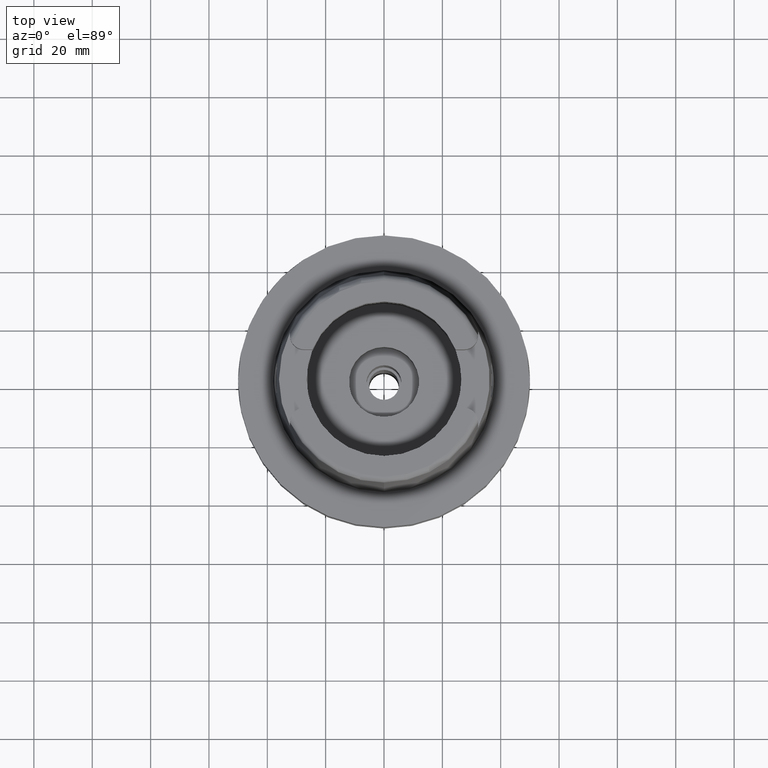
[diagram: clean part render]
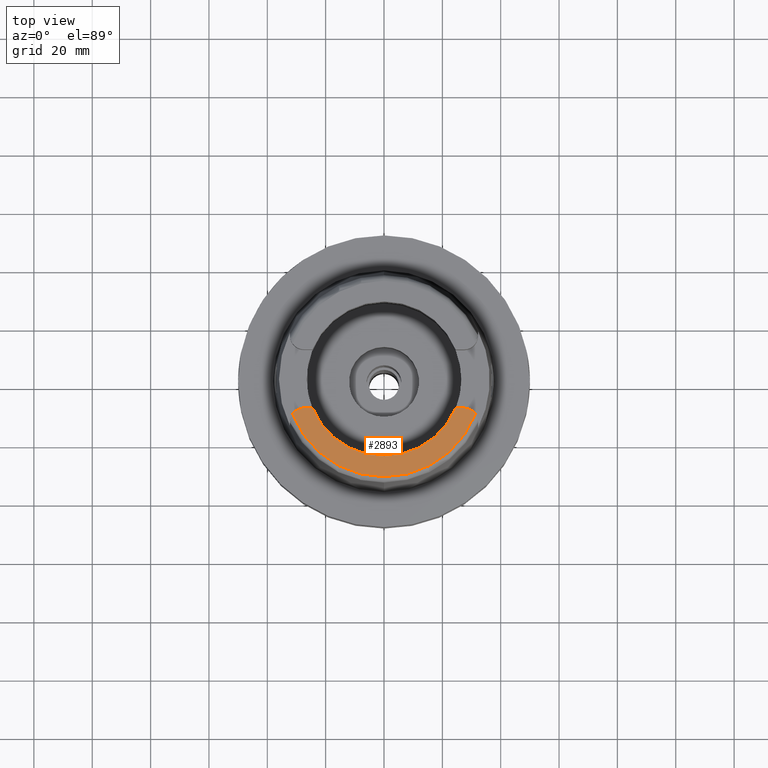
[diagram: same view with one face highlighted and labeled with its STEP entity id]
A machine part, top view. The second image highlights one B-rep face of the part: STEP entity #2893.
In plain terms, the highlighted planar face has unit normal (0, 0, 1).
Its self-contained STEP definition (entity closure, byte-faithful):
#160=DIRECTION('',(-1.E0,1.442003377037E-13,0.E0));
#161=VECTOR('',#160,2.833294842218E0);
#162=CARTESIAN_POINT('',(-2.453670515778E1,-1.001E1,5.E1));
#163=LINE('',#162,#161);
#167=CARTESIAN_POINT('',(-2.737E1,-1.489E1,5.E1));
#168=DIRECTION('',(0.E0,0.E0,-1.E0));
#169=DIRECTION('',(-8.163632566569E-1,5.775387720150E-1,0.E0));
#170=AXIS2_PLACEMENT_3D('',#167,#168,#169);
#175=CARTESIAN_POINT('',(0.E0,0.E0,5.E1));
#176=DIRECTION('',(0.E0,0.E0,1.E0));
#177=DIRECTION('',(-9.259134021805E-1,-3.777358490566E-1,0.E0));
#178=AXIS2_PLACEMENT_3D('',#175,#176,#177);
#183=CARTESIAN_POINT('',(0.E0,0.E0,5.E1));
#184=DIRECTION('',(0.E0,0.E0,1.E0));
#185=DIRECTION('',(0.E0,-1.E0,0.E0));
#186=AXIS2_PLACEMENT_3D('',#183,#184,#185);
#191=CARTESIAN_POINT('',(2.737E1,-1.489E1,5.E1));
#192=DIRECTION('',(0.E0,0.E0,-1.E0));
#193=DIRECTION('',(0.E0,1.E0,0.E0));
#194=AXIS2_PLACEMENT_3D('',#191,#192,#193);
#199=CARTESIAN_POINT('',(0.E0,0.E0,5.E1));
#200=DIRECTION('',(0.E0,0.E0,-1.E0));
#201=DIRECTION('',(9.332215253018E-1,-3.593015233942E-1,0.E0));
#202=AXIS2_PLACEMENT_3D('',#199,#200,#201);
#500=DIRECTION('',(-1.E0,-1.454542536838E-13,0.E0));
#501=VECTOR('',#500,2.833294842218E0);
#502=CARTESIAN_POINT('',(2.737E1,-1.001E1,5.E1));
#503=LINE('',#502,#501);
#2418=CARTESIAN_POINT('',(-3.135385269249E1,-1.207161079257E1,5.E1));
#2419=CARTESIAN_POINT('',(-2.737E1,-1.001E1,5.E1));
#2420=VERTEX_POINT('',#2418);
#2421=VERTEX_POINT('',#2419);
#2422=CARTESIAN_POINT('',(-2.453670515778E1,-1.001E1,5.E1));
#2423=VERTEX_POINT('',#2422);
#2424=CARTESIAN_POINT('',(0.E0,-2.65E1,5.E1));
#2425=VERTEX_POINT('',#2424);
#2426=CARTESIAN_POINT('',(2.453670515778E1,-1.001E1,5.E1));
#2427=VERTEX_POINT('',#2426);
#2428=CARTESIAN_POINT('',(2.737E1,-1.001E1,5.E1));
#2429=VERTEX_POINT('',#2428);
#2430=CARTESIAN_POINT('',(3.135385269249E1,-1.207161079257E1,5.E1));
#2431=VERTEX_POINT('',#2430);
#2874=CARTESIAN_POINT('',(0.E0,0.E0,5.E1));
#2875=DIRECTION('',(0.E0,0.E0,1.E0));
#2876=DIRECTION('',(0.E0,1.E0,0.E0));
#2877=AXIS2_PLACEMENT_3D('',#2874,#2875,#2876);
#2878=PLANE('',#2877);
#2880=ORIENTED_EDGE('',*,*,#2879,.T.);
#2881=ORIENTED_EDGE('',*,*,#2865,.F.);
#2882=ORIENTED_EDGE('',*,*,#2832,.T.);
#2884=ORIENTED_EDGE('',*,*,#2883,.T.);
#2886=ORIENTED_EDGE('',*,*,#2885,.F.);
#2888=ORIENTED_EDGE('',*,*,#2887,.T.);
#2890=ORIENTED_EDGE('',*,*,#2889,.T.);
#2891=EDGE_LOOP('',(#2880,#2881,#2882,#2884,#2886,#2888,#2890));
#2892=FACE_OUTER_BOUND('',#2891,.F.);
#171=CIRCLE('',#170,4.88E0);
#179=CIRCLE('',#178,2.65E1);
#187=CIRCLE('',#186,2.65E1);
#195=CIRCLE('',#194,4.88E0);
#203=CIRCLE('',#202,3.359743838136E1);
#2832=EDGE_CURVE('',#2423,#2425,#179,.T.);
#2865=EDGE_CURVE('',#2423,#2421,#163,.T.);
#2879=EDGE_CURVE('',#2420,#2421,#171,.T.);
#2883=EDGE_CURVE('',#2425,#2427,#187,.T.);
#2885=EDGE_CURVE('',#2429,#2427,#503,.T.);
#2887=EDGE_CURVE('',#2429,#2431,#195,.T.);
#2889=EDGE_CURVE('',#2431,#2420,#203,.T.);
#2893=ADVANCED_FACE('',(#2892),#2878,.T.);